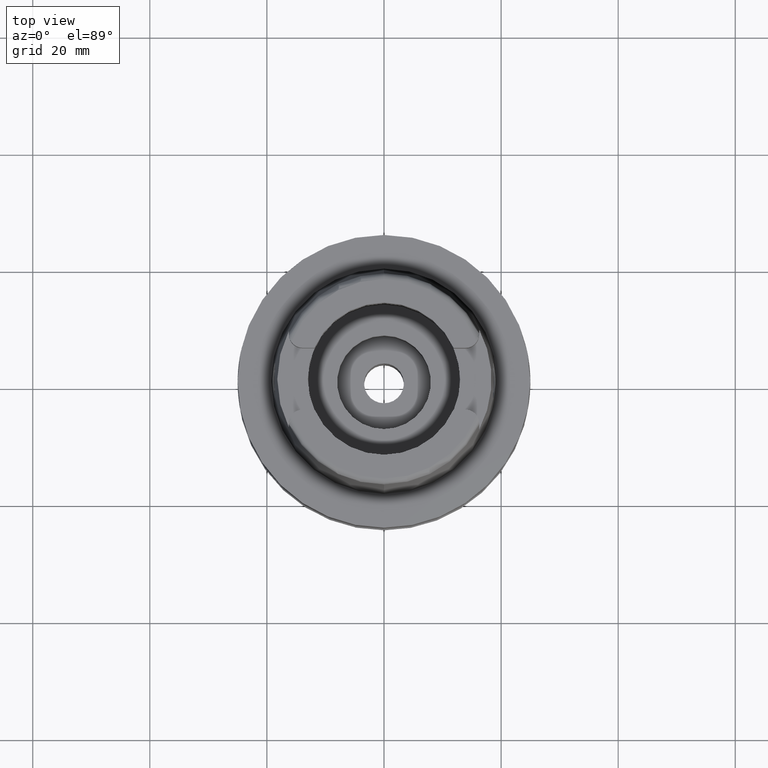
[diagram: clean part render]
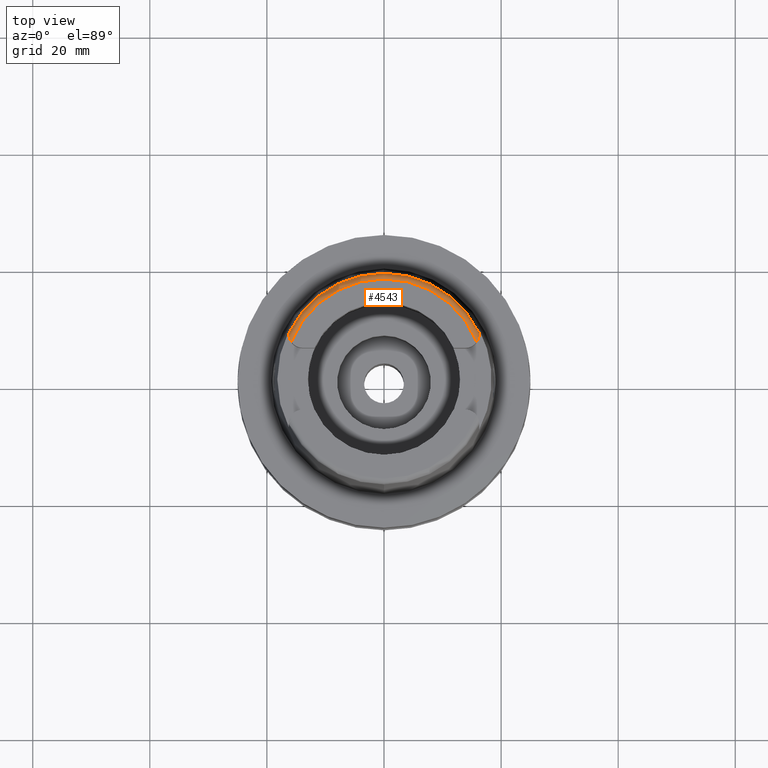
[diagram: same view with one face highlighted and labeled with its STEP entity id]
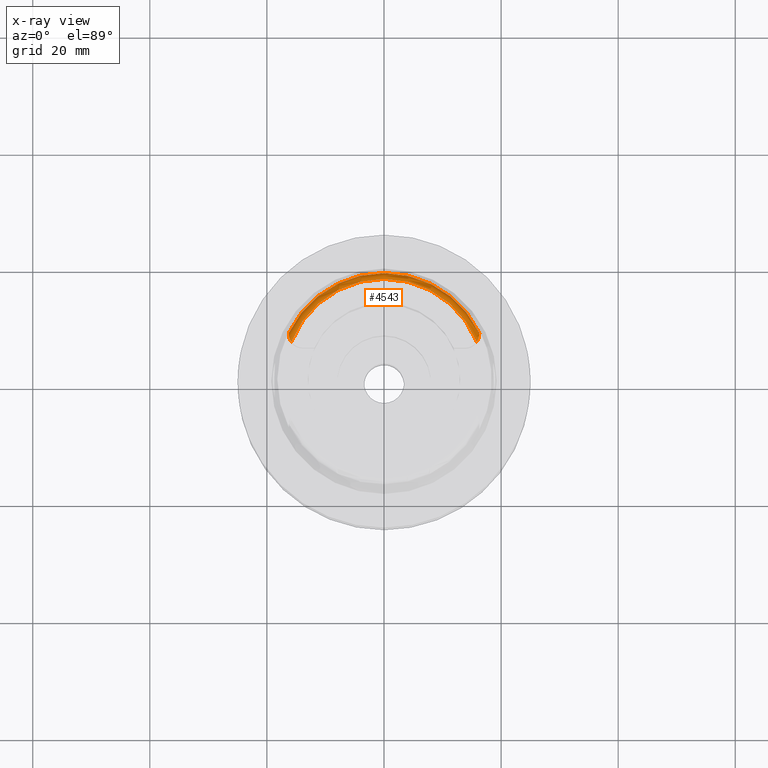
[diagram: x-ray of the same camera — body ghosted, the highlighted face saturated]
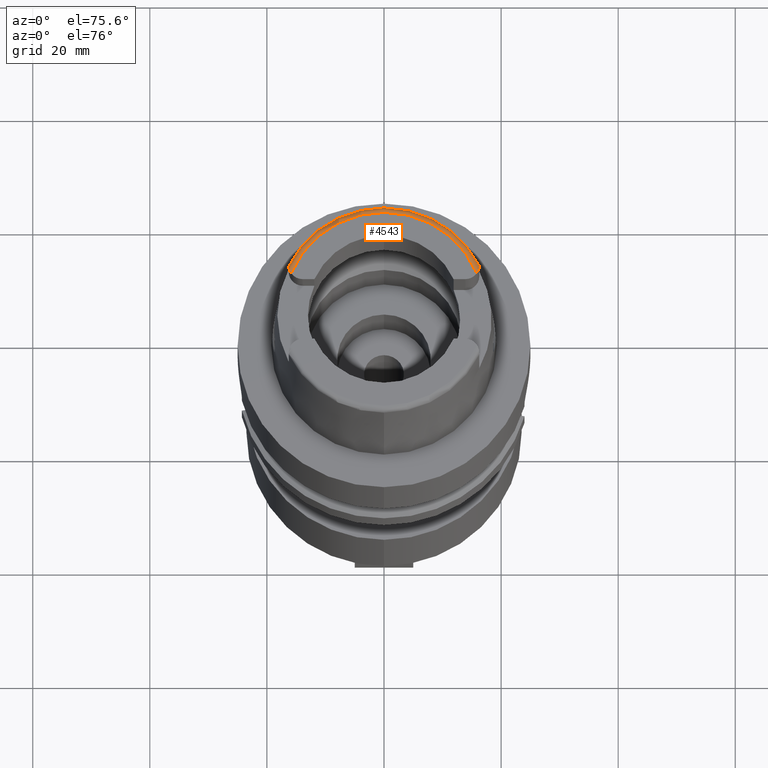
[diagram: same view with one face highlighted and labeled with its STEP entity id]
A machine part, top view. The second image highlights one B-rep face of the part: STEP entity #4543.
The next image is the same camera in x-ray: the body ghosted, the highlighted face saturated — about 0% of this face is hidden behind the body in this view.
A second angle (auxiliary view) of the same face is appended — the face is thin or edge-on in the first view.
In plain terms, the highlighted toroidal blend (fillet) surface has major radius 17.0488 mm and minor (blend) radius 1 mm.
Its self-contained STEP definition (entity closure, byte-faithful):
#26=CARTESIAN_POINT('',(0.E0,0.E0,2.5E1));
#27=DIRECTION('',(0.E0,0.E0,-1.E0));
#28=DIRECTION('',(-9.291773910544E-1,3.696341109170E-1,0.E0));
#29=AXIS2_PLACEMENT_3D('',#26,#27,#28);
#2353=CARTESIAN_POINT('',(-1.584131538933E1,6.301800480793E0,2.5E1));
#2354=CARTESIAN_POINT('',(-1.587659401328E1,6.353122638299E0,2.5E1));
#2355=CARTESIAN_POINT('',(-1.594716003630E1,6.464180552483E0,2.499213346508E1));
#2356=CARTESIAN_POINT('',(-1.604977504436E1,6.662945205027E0,2.494999310752E1));
#2357=CARTESIAN_POINT('',(-1.613602761385E1,6.879895061391E0,2.487647230637E1));
#2358=CARTESIAN_POINT('',(-1.620004401583E1,7.103137213709E0,2.477528396513E1));
#2359=CARTESIAN_POINT('',(-1.623985256340E1,7.318480079903E0,2.465307070590E1));
#2360=CARTESIAN_POINT('',(-1.625785509838E1,7.509268252936E0,2.451917355245E1));
#2361=CARTESIAN_POINT('',(-1.626E1,7.607197305050E0,2.443275142379E1));
#2362=CARTESIAN_POINT('',(-1.626E1,7.65E0,2.438968791395E1));
#2367=CARTESIAN_POINT('',(-1.626E1,7.65E0,2.438968791395E1));
#2368=CARTESIAN_POINT('',(-1.626E1,7.685101513888E0,2.435437251172E1));
#2369=CARTESIAN_POINT('',(-1.626000005395E1,7.745440234391E0,2.428220476802E1));
#2370=CARTESIAN_POINT('',(-1.625999981118E1,7.807218507298E0,2.416635664349E1));
#2371=CARTESIAN_POINT('',(-1.626000040462E1,7.826511522990E0,2.408902346781E1));
#2372=CARTESIAN_POINT('',(-1.626000040462E1,7.831014551028E0,2.404994509636E1));
#2377=CARTESIAN_POINT('',(0.E0,0.E0,2.404993752584E1));
#2378=DIRECTION('',(0.E0,0.E0,-1.E0));
#2379=DIRECTION('',(-9.009556354131E-1,4.339112155931E-1,0.E0));
#2380=AXIS2_PLACEMENT_3D('',#2377,#2378,#2379);
#2385=CARTESIAN_POINT('',(0.E0,0.E0,2.404993752584E1));
#2386=DIRECTION('',(0.E0,0.E0,-1.E0));
#2387=DIRECTION('',(0.E0,1.E0,0.E0));
#2388=AXIS2_PLACEMENT_3D('',#2385,#2386,#2387);
#2393=CARTESIAN_POINT('',(0.E0,0.E0,2.404993752584E1));
#2394=DIRECTION('',(0.E0,0.E0,-1.E0));
#2395=DIRECTION('',(8.255998758101E-4,9.999996591924E-1,0.E0));
#2396=AXIS2_PLACEMENT_3D('',#2393,#2394,#2395);
#2401=CARTESIAN_POINT('',(1.625999135394E1,7.831075740632E0,2.404977640504E1));
#2402=CARTESIAN_POINT('',(1.625999135394E1,7.826543662897E0,2.408910687681E1));
#2403=CARTESIAN_POINT('',(1.626000403483E1,7.807153879671E0,2.416629471437E1));
#2404=CARTESIAN_POINT('',(1.625999884719E1,7.745948389543E0,2.428144799173E1));
#2405=CARTESIAN_POINT('',(1.626E1,7.685376148204E0,2.435409620394E1));
#2406=CARTESIAN_POINT('',(1.626E1,7.65E0,2.438968791395E1));
#2411=CARTESIAN_POINT('',(1.626E1,7.65E0,2.438968791395E1));
#2412=CARTESIAN_POINT('',(1.626E1,7.607175029058E0,2.443277383552E1));
#2413=CARTESIAN_POINT('',(1.625785199852E1,7.509211024615E0,2.451921809691E1));
#2414=CARTESIAN_POINT('',(1.623984688176E1,7.318448594081E0,2.465308843226E1));
#2415=CARTESIAN_POINT('',(1.620004536066E1,7.103148516130E0,2.477527681754E1));
#2416=CARTESIAN_POINT('',(1.613604106942E1,6.879936909379E0,2.487645485783E1));
#2417=CARTESIAN_POINT('',(1.604979962926E1,6.663000085566E0,2.494997736146E1));
#2418=CARTESIAN_POINT('',(1.594718994196E1,6.464231250202E0,2.499212696289E1));
#2419=CARTESIAN_POINT('',(1.587660759839E1,6.353142401457E0,2.5E1));
#2420=CARTESIAN_POINT('',(1.584131538933E1,6.301800480794E0,2.5E1));
#2443=CARTESIAN_POINT('',(-1.584131538933E1,6.301800480794E0,2.5E1));
#2444=VERTEX_POINT('',#2443);
#2445=CARTESIAN_POINT('',(1.584131538933E1,6.301800480795E0,2.5E1));
#2446=VERTEX_POINT('',#2445);
#2488=VERTEX_POINT('',#2362);
#2489=VERTEX_POINT('',#2372);
#2490=CARTESIAN_POINT('',(0.E0,1.804750486565E1,2.404993752584E1));
#2491=VERTEX_POINT('',#2490);
#2492=CARTESIAN_POINT('',(1.490001777577E-2,1.804749871493E1,2.404993752584E1));
#2493=CARTESIAN_POINT('',(1.625997406183E1,7.831071151783E0,2.404993752584E1));
#2494=VERTEX_POINT('',#2492);
#2495=VERTEX_POINT('',#2493);
#2496=VERTEX_POINT('',#2406);
#4525=CARTESIAN_POINT('',(0.E0,0.E0,2.4E1));
#4526=DIRECTION('',(0.E0,0.E0,1.E0));
#4527=DIRECTION('',(-8.255998758101E-4,-9.999996591924E-1,0.E0));
#4528=AXIS2_PLACEMENT_3D('',#4525,#4526,#4527);
#4529=TOROIDAL_SURFACE('',#4528,1.704875252222E1,1.E0);
#4531=ORIENTED_EDGE('',*,*,#4530,.T.);
#4533=ORIENTED_EDGE('',*,*,#4532,.T.);
#4534=ORIENTED_EDGE('',*,*,#2989,.T.);
#4535=ORIENTED_EDGE('',*,*,#3013,.T.);
#4536=ORIENTED_EDGE('',*,*,#3011,.T.);
#4538=ORIENTED_EDGE('',*,*,#4537,.T.);
#4539=ORIENTED_EDGE('',*,*,#4516,.T.);
#4540=ORIENTED_EDGE('',*,*,#2818,.F.);
#4541=EDGE_LOOP('',(#4531,#4533,#4534,#4535,#4536,#4538,#4539,#4540));
#4542=FACE_OUTER_BOUND('',#4541,.F.);
#30=CIRCLE('',#29,1.704875252222E1);
#2363=B_SPLINE_CURVE_WITH_KNOTS('',3,(#2353,#2354,#2355,#2356,#2357,#2358,#2359,
#2360,#2361,#2362),.UNSPECIFIED.,.F.,.F.,(4,1,1,1,1,1,1,4),(0.E0,
1.428571428571E-1,2.857142857143E-1,4.285714285714E-1,5.714285714286E-1,
7.142857142857E-1,8.571428571429E-1,1.E0),.UNSPECIFIED.);
#2373=B_SPLINE_CURVE_WITH_KNOTS('',3,(#2367,#2368,#2369,#2370,#2371,#2372),
.UNSPECIFIED.,.F.,.F.,(4,1,1,4),(0.E0,3.333333333333E-1,6.666666666667E-1,1.E0),
.UNSPECIFIED.);
#2381=CIRCLE('',#2380,1.804750486565E1);
#2389=CIRCLE('',#2388,1.804750486565E1);
#2397=CIRCLE('',#2396,1.804750486565E1);
#2407=B_SPLINE_CURVE_WITH_KNOTS('',3,(#2401,#2402,#2403,#2404,#2405,#2406),
.UNSPECIFIED.,.F.,.F.,(4,1,1,4),(0.E0,3.333333333333E-1,6.666666666667E-1,1.E0),
.UNSPECIFIED.);
#2421=B_SPLINE_CURVE_WITH_KNOTS('',3,(#2411,#2412,#2413,#2414,#2415,#2416,#2417,
#2418,#2419,#2420),.UNSPECIFIED.,.F.,.F.,(4,1,1,1,1,1,1,4),(0.E0,
1.428571428571E-1,2.857142857143E-1,4.285714285714E-1,5.714285714286E-1,
7.142857142857E-1,8.571428571429E-1,1.E0),.UNSPECIFIED.);
#2818=EDGE_CURVE('',#2444,#2446,#30,.T.);
#2989=EDGE_CURVE('',#2489,#2491,#2381,.T.);
#3011=EDGE_CURVE('',#2494,#2495,#2397,.T.);
#3013=EDGE_CURVE('',#2491,#2494,#2389,.T.);
#4516=EDGE_CURVE('',#2496,#2446,#2421,.T.);
#4530=EDGE_CURVE('',#2444,#2488,#2363,.T.);
#4532=EDGE_CURVE('',#2488,#2489,#2373,.T.);
#4537=EDGE_CURVE('',#2495,#2496,#2407,.T.);
#4543=ADVANCED_FACE('',(#4542),#4529,.T.);